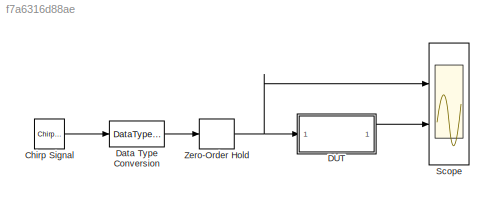
MODEL slx_f7a6316d88ae
KIND model
CONFIG AbsTol = auto
CONFIG FixedStep = auto
CONFIG MaxStep = auto
CONFIG MinStep = auto
CONFIG RelTol = 1e-3
CONFIG SampleTimeConstraint = Unconstrained
CONFIG Solver = FixedStepDiscrete
CONFIG SolverMode = SingleTasking
CONFIG SolverName = FixedStepDiscrete
CONFIG StartTime = 0.0
CONFIG StopTime = 10.0
BLOCK [Reference] Chirp Signal  REF=simulink/Sources/Chirp Signal
  Ports = [0, 1]
  SourceBlock = simulink/Sources/Chirp Signal
  SourceType = chirp
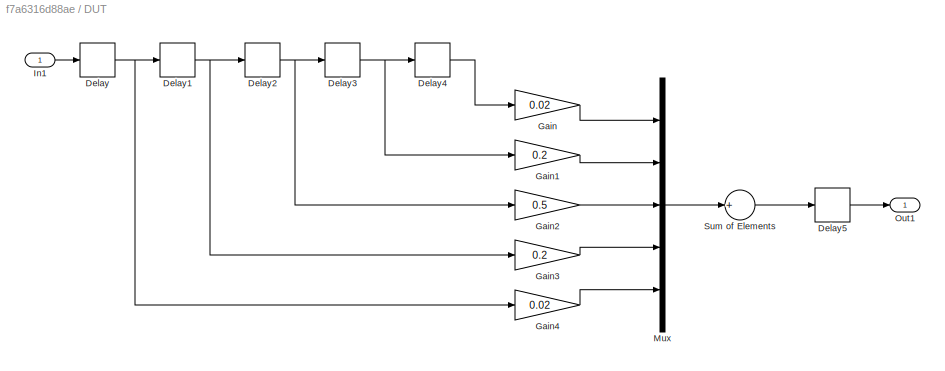
BLOCK [SubSystem] DUT
  Ports = [1, 1]
  RequestExecContextInheritance = off
  Variant = off
BLOCK [Delay] DUT/Delay
  DelayLength = 1
  InputPortMap = u0
  Ports = [1, 1]
BLOCK [Delay] DUT/Delay1
  DelayLength = 1
  InputPortMap = u0
  Ports = [1, 1]
BLOCK [Delay] DUT/Delay2
  DelayLength = 1
  InputPortMap = u0
  Ports = [1, 1]
BLOCK [Delay] DUT/Delay3
  DelayLength = 1
  InputPortMap = u0
  Ports = [1, 1]
BLOCK [Delay] DUT/Delay4
  DelayLength = 1
  InputPortMap = u0
  Ports = [1, 1]
BLOCK [Delay] DUT/Delay5
  DelayLength = 1
  InputPortMap = u0
  Ports = [1, 1]
BLOCK [Gain] DUT/Gain
  Gain = 0.02
  ParamDataTypeStr = Inherit: Inherit via internal rule
  SaturateOnIntegerOverflow = off
BLOCK [Gain] DUT/Gain1
  Gain = 0.2
  ParamDataTypeStr = Inherit: Inherit via internal rule
  SaturateOnIntegerOverflow = off
BLOCK [Gain] DUT/Gain2
  Gain = 0.5
  ParamDataTypeStr = Inherit: Inherit via internal rule
  SaturateOnIntegerOverflow = off
BLOCK [Gain] DUT/Gain3
  Gain = 0.2
  ParamDataTypeStr = Inherit: Inherit via internal rule
  SaturateOnIntegerOverflow = off
BLOCK [Gain] DUT/Gain4
  Gain = 0.02
  ParamDataTypeStr = Inherit: Inherit via internal rule
  SaturateOnIntegerOverflow = off
BLOCK [Inport] DUT/In1
  IconDisplay = Port number
BLOCK [Mux] DUT/Mux
  DisplayOption = bar
  Inputs = 5
  Ports = [5, 1]
BLOCK [Outport] DUT/Out1
  IconDisplay = Port number
BLOCK [Sum] DUT/Sum of Elements
  InputSameDT = off
  Inputs = +
  OutDataTypeStr = Inherit: Inherit via internal rule
  Ports = [1, 1]
  SaturateOnIntegerOverflow = off
BLOCK [DataTypeConversion] Data Type Conversion
  OutDataTypeStr = fixdt(1,16,14)
  RndMeth = Nearest
  SaturateOnIntegerOverflow = off
BLOCK [Scope] Scope
  NumInputPorts = 2
  Ports = [2]
  ScopeSpecificationString = Simulink.scopes.TimeScopeBlockCfg('CurrentConfiguration', extmgr.ConfigurationSet(extmgr.Configuration('Core','General UI',true),extmgr.Configuration('Core','Source UI',true),extmgr.Configuration('Sources','WiredSimulink',true,'DataLoggingSaveFormat','StructureWithTime','DataLoggingDecimation','1','DataLoggingDecimateData',true),extmgr.Configuration('Visuals','Time Domain',true,'SerializedDisplays...<+2373ch>
BLOCK [ZeroOrderHold] Zero-Order Hold
  SampleTime = 1/1000
LINE Chirp Signal:1 -> Data Type Conversion:1
NET DUT/Delay1:1 -> DUT/Delay2:1, DUT/Gain3:1
NET DUT/Delay2:1 -> DUT/Delay3:1, DUT/Gain2:1
NET DUT/Delay3:1 -> DUT/Delay4:1, DUT/Gain1:1
LINE DUT/Delay4:1 -> DUT/Gain:1
LINE DUT/Delay5:1 -> DUT/Out1:1
NET DUT/Delay:1 -> DUT/Delay1:1, DUT/Gain4:1
LINE DUT/Gain1:1 -> DUT/Mux:2
LINE DUT/Gain2:1 -> DUT/Mux:3
LINE DUT/Gain3:1 -> DUT/Mux:4
LINE DUT/Gain4:1 -> DUT/Mux:5
LINE DUT/Gain:1 -> DUT/Mux:1
LINE DUT/In1:1 -> DUT/Delay:1
LINE DUT/Mux:1 -> DUT/Sum of Elements:1
LINE DUT/Sum of Elements:1 -> DUT/Delay5:1
LINE DUT:1 -> Scope:2
LINE Data Type Conversion:1 -> Zero-Order Hold:1
NET Zero-Order Hold:1 -> DUT:1, Scope:1
note: NET lines group one-source signal fan-out (src -> all destinations, sorted); 1:1 wires keep LINE
